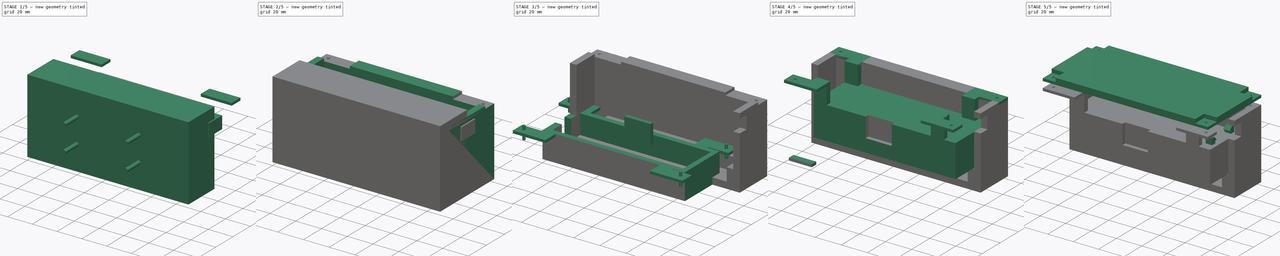
[diagram: build sequence overview — one tinted view per stage of 5, left to right]
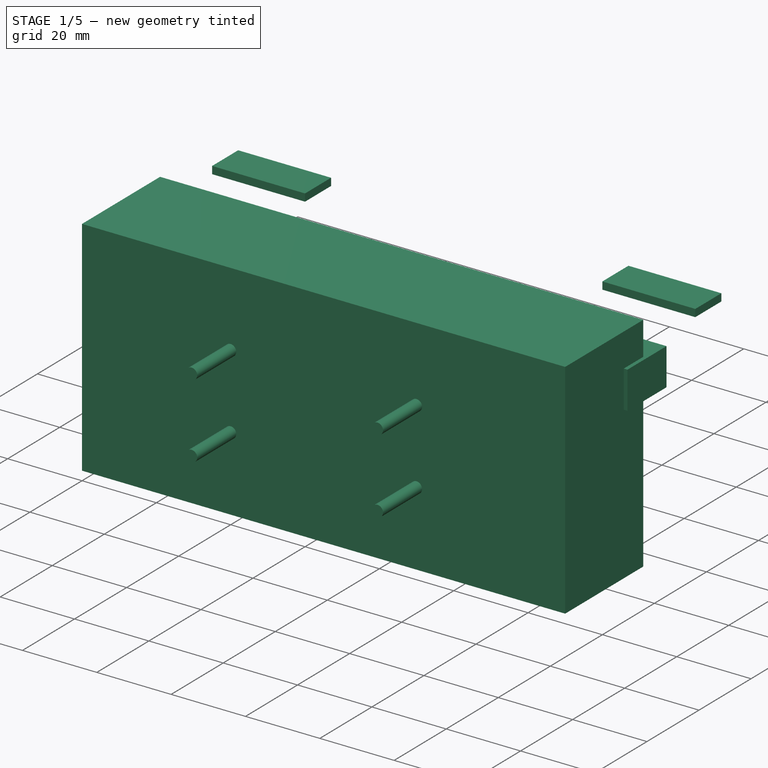
[diagram: stage 1 of 5 — iso view after this stage's code; geometry added in this stage tinted green]
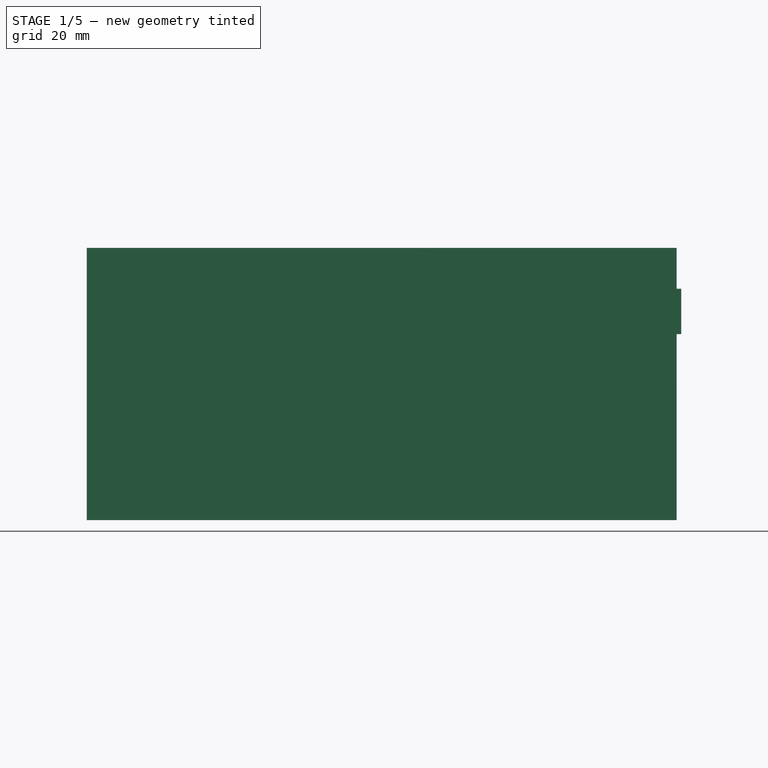
[diagram: stage 1 of 5 — front view after this stage's code; geometry added in this stage tinted green]
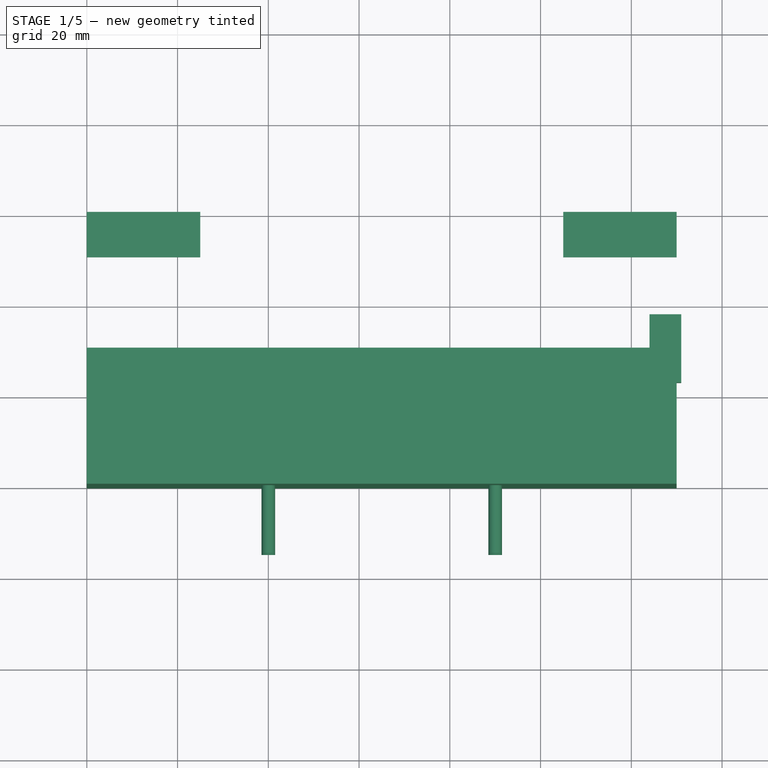
[diagram: stage 1 of 5 — top view after this stage's code; geometry added in this stage tinted green]
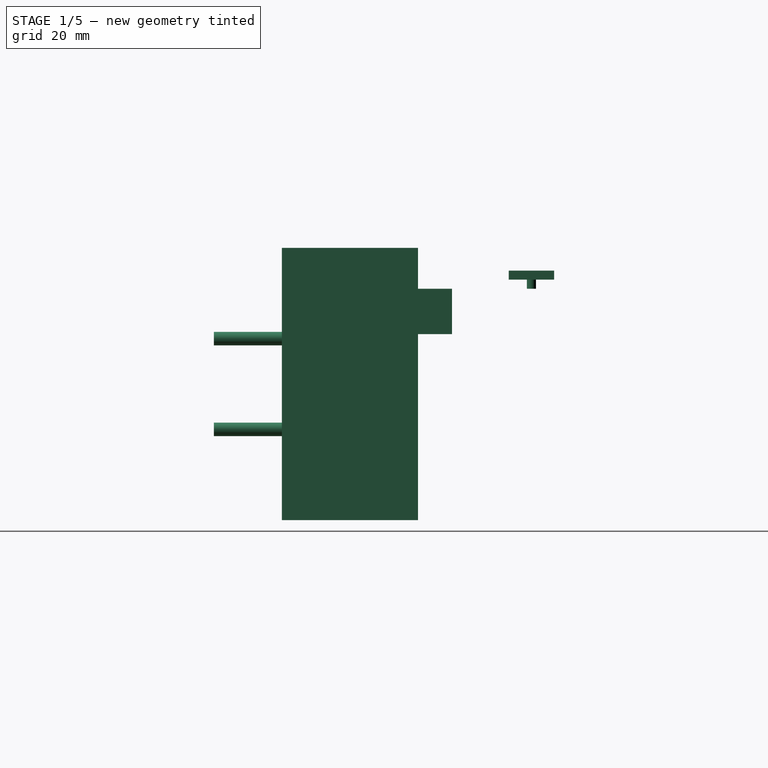
[diagram: stage 1 of 5 — right view after this stage's code; geometry added in this stage tinted green]
FCSTD DOCUMENT  (FreeCAD 0.17R13519 (Git))
Label: Alimentacion_SeccionXZ
License: All rights reserved
LicenseURL: http://en.wikipedia.org/wiki/All_rights_reserved
objects: Part::Box×17, Part::Cut×13, Part::FeaturePython×11, Part::MultiFuse×6, Part::Cylinder×4, Sketcher::SketchObject×3, PartDesign::Pad×3, App::DocumentObjectGroup×2, Part::Chamfer×1
note: 61 computed .brp shape members not serialized (recipe doc carries the construction recipe); baked Part::Feature solids carry a one-line shape summary decoded from their .brp

FEATURE [Part::Box] Box004  label="Cubo"
  AttacherType = Attacher::AttachEngine3D
  Height = 10
  Length = 10
  Width = 2
FEATURE [Part::Box] Box005  label="Cubo001"
  AttacherType = Attacher::AttachEngine3D
  Height = 10
  Length = 10
  Placement = pos=(35,0,25) rot=(0,0,1;0rad)
  Width = 10
FEATURE [Part::FeaturePython] Array001  # Draft array (typed FeaturePython)
  Angle = 360
  ArrayType = 0
  Axis = (0,0,1)
  Base = -> Box005
  Center = (0,0,0)
  Fuse = false
  IntervalAxis = (0,0,0)
  IntervalX = (50,0,0)
  IntervalY = (0,0,0)
  IntervalZ = (0,0,0)
  NumberPolar = 1
  NumberX = 2
  NumberY = 1
  NumberZ = 1
FEATURE [Part::Box] Box006  label="Cubo002"
  AttacherType = Attacher::AttachEngine3D
  Height = 2
  Length = 25
  Width = 10
FEATURE [Part::FeaturePython] Array002  # Draft array (typed FeaturePython)
  Angle = 360
  ArrayType = 0
  Axis = (0,0,1)
  Base = -> Box006
  Center = (0,0,0)
  Fuse = false
  IntervalAxis = (0,0,0)
  IntervalX = (105,0,0)
  IntervalY = (0,50,0)
  IntervalZ = (0,0,0)
  NumberPolar = 1
  NumberX = 2
  NumberY = 2
  NumberZ = 1
  Placement = pos=(0,0,53) rot=(0,0,1;0rad)
FEATURE [Part::Cylinder] Cylinder  label="Cilindro"
  Angle = 360
  AttacherType = Attacher::AttachEngine3D
  Height = 30
  Placement = pos=(0,0,0) rot=(1,0,0;1.5708rad)
  Radius = 1.5
FEATURE [Part::FeaturePython] Array003  # Draft array (typed FeaturePython)
  Angle = 360
  ArrayType = 0
  Axis = (0,0,1)
  Base = -> Cylinder
  Center = (0,0,0)
  Fuse = false
  IntervalAxis = (0,0,0)
  IntervalX = (50,0,0)
  IntervalY = (0,0,20)
  IntervalZ = (0,0,0)
  NumberPolar = 1
  NumberX = 2
  NumberY = 2
  NumberZ = 1
  Placement = pos=(40,15,20) rot=(0,0,1;0rad)
FEATURE [Part::Cylinder] Cylinder001  label="Cilindro001"
  Angle = 360
  AttacherType = Attacher::AttachEngine3D
  Height = 3
  Radius = 1
FEATURE [Part::FeaturePython] Array004  # Draft array (typed FeaturePython)
  Angle = 360
  ArrayType = 0
  Axis = (0,0,1)
  Base = -> Cylinder001
  Center = (0,0,0)
  Fuse = false
  IntervalAxis = (0,0,0)
  IntervalX = (120,0,0)
  IntervalY = (0,50,0)
  IntervalZ = (0,0,0)
  NumberPolar = 1
  NumberX = 2
  NumberY = 2
  NumberZ = 1
  Placement = pos=(5,5,51) rot=(0,0,1;0rad)
FEATURE [Part::Box] Box014  label="HuecoUSB"
  AttacherType = Attacher::AttachEngine3D
  Height = 10
  Length = 7
  Placement = pos=(124,22.5,41) rot=(0,0,1;0rad)
  Width = 15
FEATURE [Part::Box] Box016  label="Corte"
  AttacherType = Attacher::AttachEngine3D
  Height = 60
  Length = 130
  Width = 30
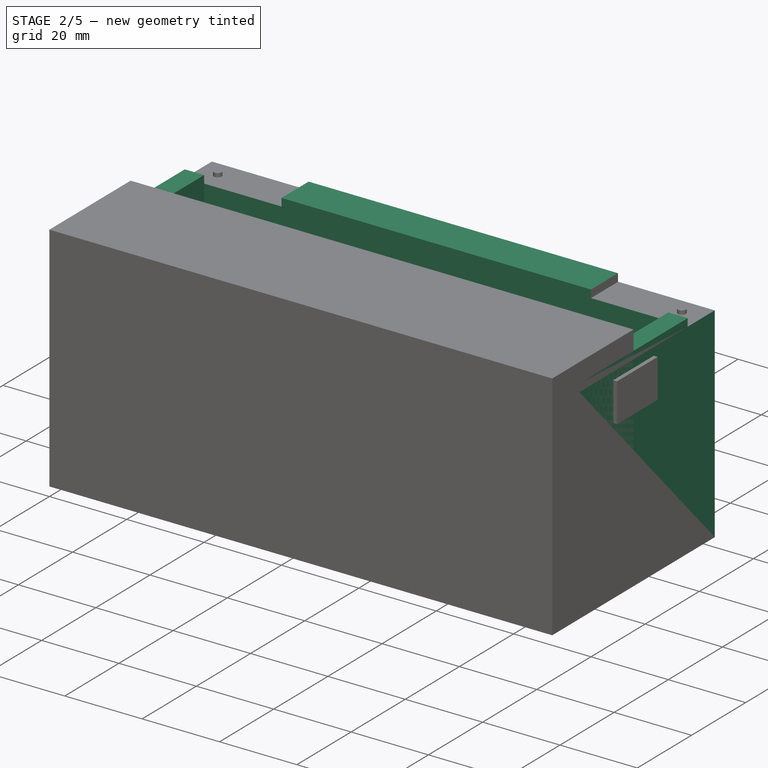
[diagram: stage 2 of 5 — iso view after this stage's code; geometry added in this stage tinted green]
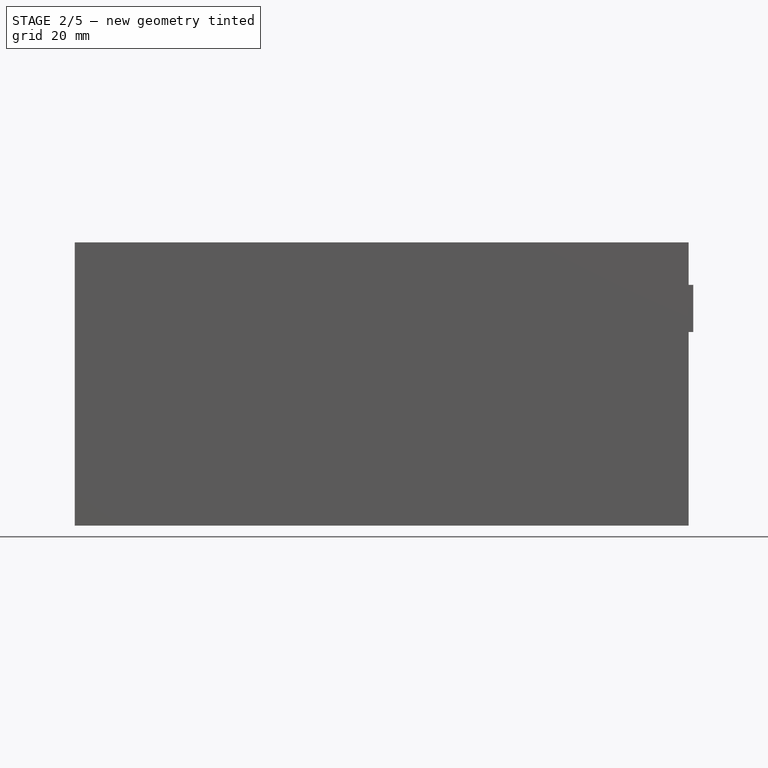
[diagram: stage 2 of 5 — front view after this stage's code; geometry added in this stage tinted green]
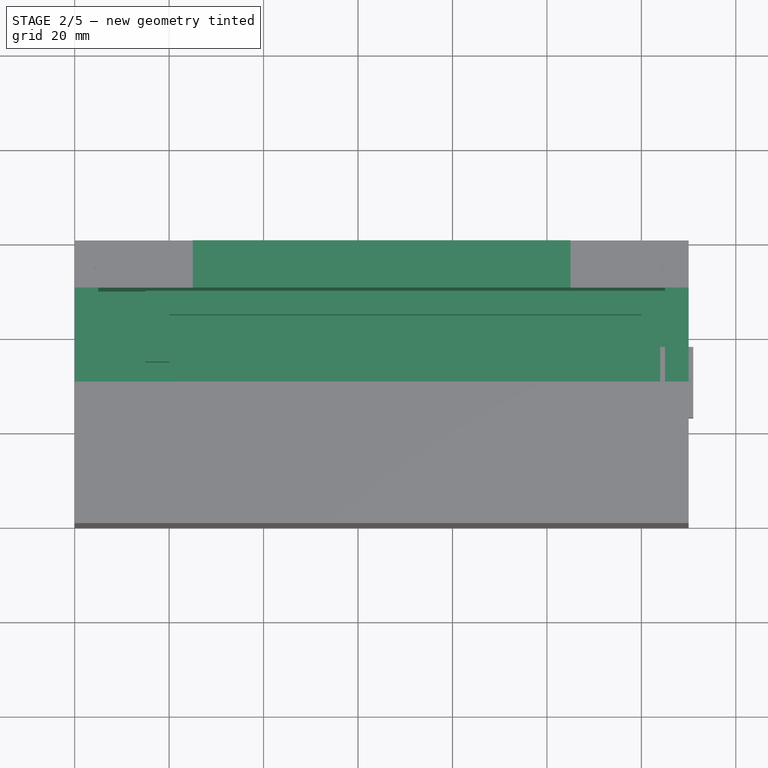
[diagram: stage 2 of 5 — top view after this stage's code; geometry added in this stage tinted green]
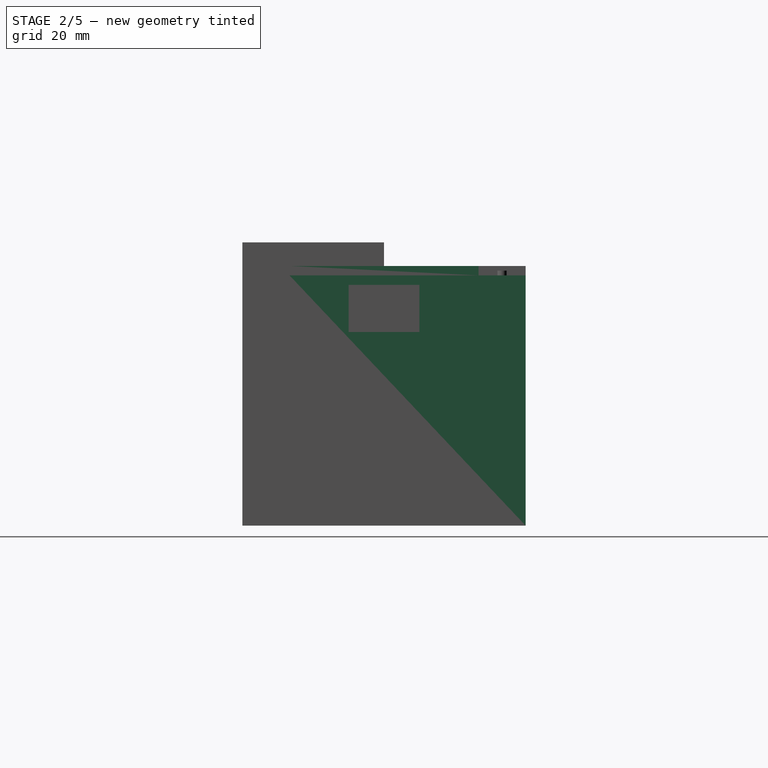
[diagram: stage 2 of 5 — right view after this stage's code; geometry added in this stage tinted green]
FEATURE [Part::Box] Box  label="Exterior"
  AttacherType = Attacher::AttachEngine3D
  Height = 55
  Length = 130
  Width = 60
FEATURE [Part::Box] Box001  label="Interior"
  AttacherType = Attacher::AttachEngine3D
  Height = 50
  Length = 120
  Placement = pos=(5,10,5) rot=(0,0,1;0rad)
  Width = 40
FEATURE [Part::Cut] Cut  label="BaseCarcasa"
  Base = -> Box
  Refine = true
  Tool = -> Box001
FEATURE [Part::Box] Box003  label="HuecoConector_1"
  AttacherType = Attacher::AttachEngine3D
  Height = 30
  Length = 60
  Width = 10
FEATURE [Part::FeaturePython] Array  # Draft array (typed FeaturePython)
  Angle = 360
  ArrayType = 0
  Axis = (0,0,1)
  Base = -> Box004
  Center = (0,0,0)
  Fuse = false
  IntervalAxis = (0,0,0)
  IntervalX = (50,0,0)
  IntervalY = (0,0,20)
  IntervalZ = (0,0,0)
  NumberPolar = 1
  NumberX = 2
  NumberY = 2
  NumberZ = 1
  Placement = pos=(0,5,0) rot=(0,0,1;0rad)
FEATURE [Part::Cut] Cut001  label="HuecoConector"
  Base = -> Box003
  Placement = pos=(35,0,15) rot=(0,0,1;0rad)
  Refine = true
  Tool = -> Array
FEATURE [Part::Cut] Cut002
  Base = -> Cut001
  Refine = true
  Tool = -> Array001
FEATURE [Part::Cut] Cut003  label="BaseConConector"
  Base = -> Cut
  Refine = true
  Tool = -> Cut002
FEATURE [Part::Cut] Cut004  label="BaseConSoporte"
  Base = -> Cut003
  Refine = true
  Tool = -> Array002
FEATURE [App::DocumentObjectGroup] Grupo  label="Carcasa_Partes"
  Group = -> [Cut004]
FEATURE [Sketcher::SketchObject] Sketch
  ExternalGeometry = -> [Cut004]
  MapMode = 5
  Placement = pos=(0,0,5) rot=(0,0,1;0rad)
  Support = -> [Cut004]
  sketch-geometry (12):
    g0: LineSegment StartX=15 StartY=35 StartZ=0 EndX=20 EndY=35 EndZ=0
    g1: LineSegment StartX=20 StartY=35 StartZ=0 EndX=20 EndY=45 EndZ=0
    g2: LineSegment StartX=20 StartY=45 StartZ=0 EndX=120 EndY=45 EndZ=0
    g3: LineSegment StartX=120 StartY=45 StartZ=0 EndX=120 EndY=15 EndZ=0
    g4: LineSegment StartX=120 StartY=15 StartZ=0 EndX=20 EndY=15 EndZ=0
    g5: LineSegment StartX=20 StartY=15 StartZ=0 EndX=20 EndY=25 EndZ=0
    g6: LineSegment StartX=20 StartY=25 StartZ=0 EndX=15 EndY=25 EndZ=0
    g7: LineSegment StartX=15 StartY=25 StartZ=0 EndX=15 EndY=10 EndZ=0
    g8: LineSegment StartX=15 StartY=10 StartZ=0 EndX=125 EndY=10 EndZ=0
    g9: LineSegment StartX=125 StartY=10 StartZ=0 EndX=125 EndY=50 EndZ=0
    g10: LineSegment StartX=125 StartY=50 StartZ=0 EndX=15 EndY=50 EndZ=0
    g11: LineSegment StartX=15 StartY=50 StartZ=0 EndX=15 EndY=35 EndZ=0
  constraints (37):
    c: Horizontal(g0)
    c: Coincident(g0,g1)
    c: Vertical(g1)
    c: Coincident(g1,g2)
    c: Horizontal(g2)
    c: Coincident(g2,g3)
    c: Vertical(g3)
    c: Coincident(g3,g4)
    c: Horizontal(g4)
    c: Coincident(g4,g5)
    c: Coincident(g5,g6)
    c: Horizontal(g6)
    c: Coincident(g6,g7)
    c: Vertical(g7)
    c: Coincident(g7,g8)
    c: Horizontal(g8)
    c: Coincident(g8,g9)
    c: Vertical(g9)
    c: Coincident(g9,g10)
    c: Horizontal(g10)
    c: Coincident(g10,g11)
    c: Coincident(g11,g0)
    c: Vertical(g11)
    c: Equal(g2,g4)
    c: Equal(g10,g8)
    c: Vertical(g5)
    c: Equal(g5,g1)
    c: Equal(g7,g11)
    c: Equal(g6,g0)
    c: DistanceX(g10,g10) = 110
    c: DistanceY(g11,g11) = 15
    c: DistanceY(g3,g3) = 30
    c: DistanceY(g9,g9) = 40
    c: DistanceX(g6,g6) = 5
    c: DistanceX(g4,g4) = 100
    c: PointOnObject(g10,g-3)
    c: Coincident(g-3,g9)
FEATURE [PartDesign::Pad] Pad  label="BaseConBateria"
  Length = 10
  Length2 = 100
  Profile = -> Sketch
  Refine = true
  Type = 0
FEATURE [Part::Cut] Cut005
  Base = -> Pad
  Refine = true
  Tool = -> Array003
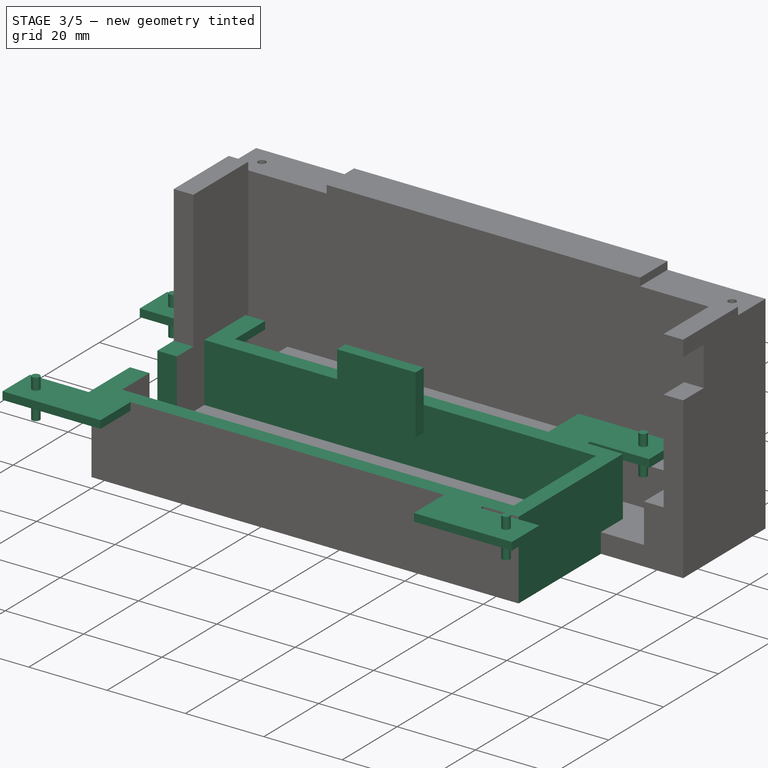
[diagram: stage 3 of 5 — iso view after this stage's code; geometry added in this stage tinted green]
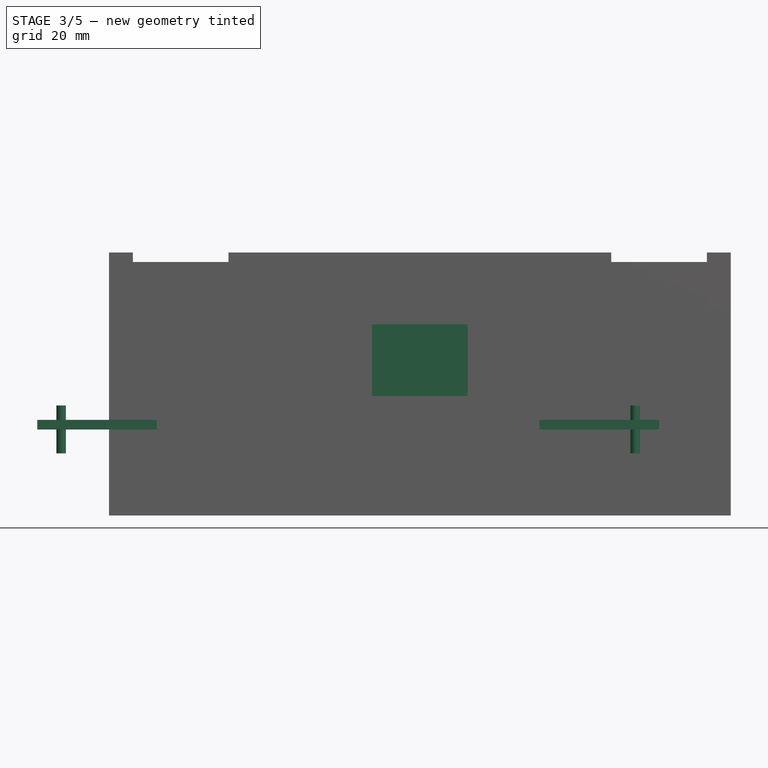
[diagram: stage 3 of 5 — front view after this stage's code; geometry added in this stage tinted green]
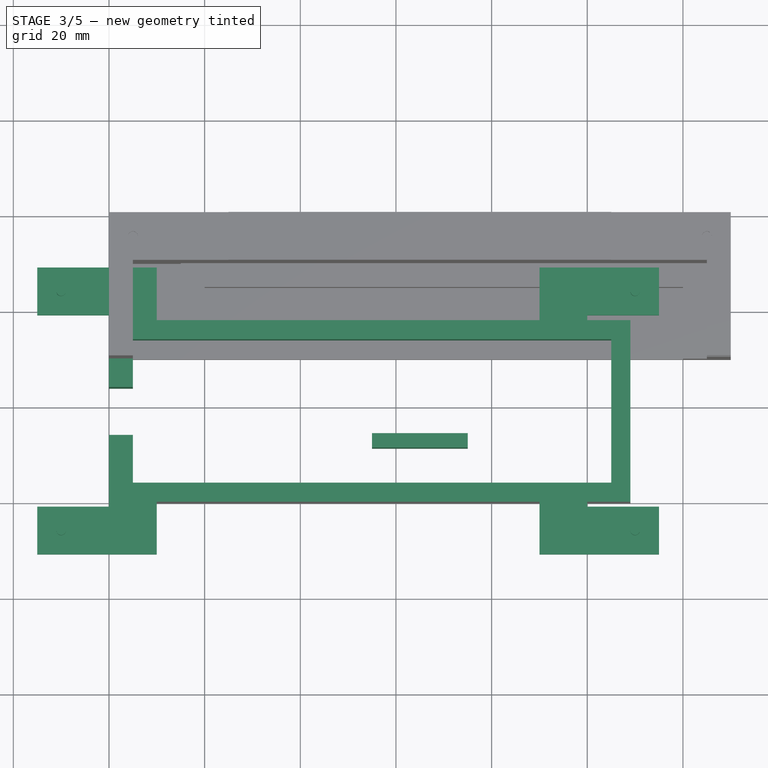
[diagram: stage 3 of 5 — top view after this stage's code; geometry added in this stage tinted green]
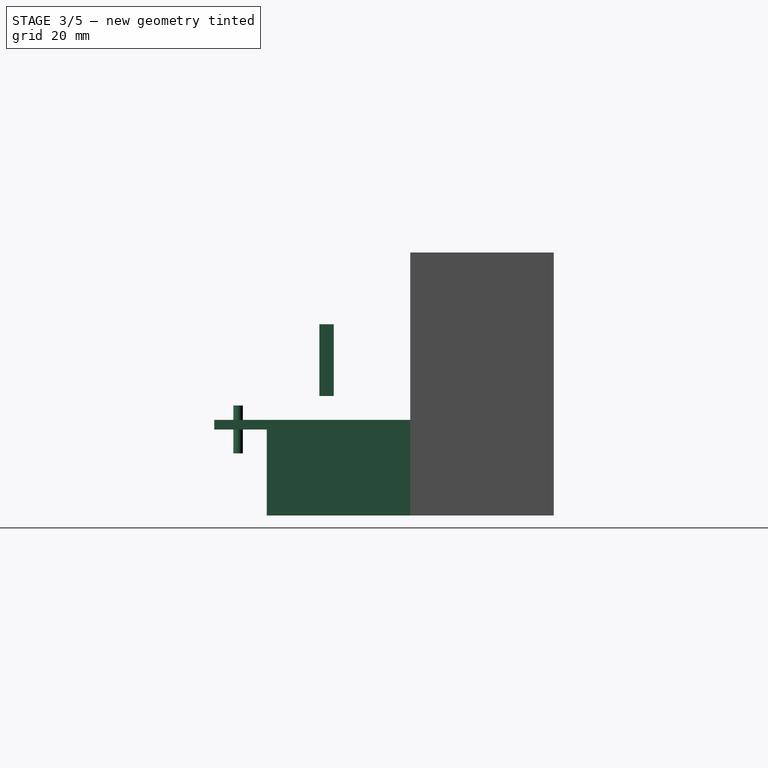
[diagram: stage 3 of 5 — right view after this stage's code; geometry added in this stage tinted green]
FEATURE [Part::Cut] Cut006  label="Carcasa_Alimentacion"
  Base = -> Cut005
  Refine = true
  Tool = -> Array004
FEATURE [Part::Box] Box010  label="Cubo005"
  AttacherType = Attacher::AttachEngine3D
  Height = 2
  Length = 10
  Placement = pos=(0,-11,18) rot=(0,0,1;0rad)
  Width = 15
FEATURE [Part::FeaturePython] Array007  # Draft array (typed FeaturePython)
  Angle = 360
  ArrayType = 0
  Axis = (0,0,1)
  Base = -> Box010
  Center = (0,0,0)
  Fuse = false
  IntervalAxis = (0,0,0)
  IntervalX = (90,0,0)
  IntervalY = (0,45,0)
  IntervalZ = (0,0,0)
  NumberPolar = 1
  NumberX = 2
  NumberY = 2
  NumberZ = 1
FEATURE [Part::Box] Box011  label="Cubo006"
  AttacherType = Attacher::AttachEngine3D
  Height = 2
  Length = 25
  Placement = pos=(-15,-11,18) rot=(0,0,1;0rad)
  Width = 10
FEATURE [Part::FeaturePython] Array008  # Draft array (typed FeaturePython)
  Angle = 360
  ArrayType = 0
  Axis = (0,0,1)
  Base = -> Box011
  Center = (0,0,0)
  Fuse = false
  IntervalAxis = (0,0,0)
  IntervalX = (105,0,0)
  IntervalY = (0,50,0)
  IntervalZ = (0,0,0)
  NumberPolar = 1
  NumberX = 2
  NumberY = 2
  NumberZ = 1
FEATURE [Part::Cylinder] Cylinder003  label="Cilindro003"
  Angle = 360
  AttacherType = Attacher::AttachEngine3D
  Height = 10
  Radius = 1
FEATURE [Part::FeaturePython] Array009  # Draft array (typed FeaturePython)
  Angle = 360
  ArrayType = 0
  Axis = (0,0,1)
  Base = -> Cylinder003
  Center = (0,0,0)
  Fuse = false
  IntervalAxis = (0,0,0)
  IntervalX = (120,0,0)
  IntervalY = (0,50,0)
  IntervalZ = (0,0,0)
  NumberPolar = 1
  NumberX = 2
  NumberY = 2
  NumberZ = 1
  Placement = pos=(-10,-6,13) rot=(0,0,1;0rad)
FEATURE [Sketcher::SketchObject] Sketch001
  MapMode = 5
  sketch-geometry (12):
    g0: LineSegment StartX=0 StartY=24 StartZ=0 EndX=5 EndY=24 EndZ=0
    g1: LineSegment StartX=5 StartY=24 StartZ=0 EndX=5 EndY=34 EndZ=0
    g2: LineSegment StartX=5 StartY=34 StartZ=0 EndX=105 EndY=34 EndZ=0
    g3: LineSegment StartX=105 StartY=34 StartZ=0 EndX=105 EndY=4 EndZ=0
    g4: LineSegment StartX=105 StartY=4 StartZ=0 EndX=5 EndY=4 EndZ=0
    g5: LineSegment StartX=5 StartY=4 StartZ=0 EndX=5 EndY=14 EndZ=0
    g6: LineSegment StartX=5 StartY=14 StartZ=0 EndX=0 EndY=14 EndZ=0
    g7: LineSegment StartX=0 StartY=14 StartZ=0 EndX=0 EndY=0 EndZ=0
    g8: LineSegment StartX=0 StartY=0 StartZ=0 EndX=109 EndY=0 EndZ=0
    g9: LineSegment StartX=109 StartY=0 StartZ=0 EndX=109 EndY=38 EndZ=0
    g10: LineSegment StartX=109 StartY=38 StartZ=0 EndX=0 EndY=38 EndZ=0
    g11: LineSegment StartX=0 StartY=38 StartZ=0 EndX=0 EndY=24 EndZ=0
  constraints (36):
    c: Coincident(g0,g1)
    c: Coincident(g1,g2)
    c: Horizontal(g2)
    c: Coincident(g2,g3)
    c: Coincident(g3,g4)
    c: Horizontal(g4)
    c: Coincident(g4,g5)
    c: Coincident(g5,g6)
    c: Coincident(g6,g7)
    c: Coincident(g7,g8)
    c: Horizontal(g8)
    c: Coincident(g8,g9)
    c: Vertical(g9)
    c: Coincident(g9,g10)
    c: Horizontal(g10)
    c: Coincident(g10,g11)
    c: Coincident(g11,g0)
    c: Vertical(g3)
    c: Vertical(g11)
    c: Vertical(g7)
    c: Vertical(g5)
    c: Horizontal(g6)
    c: Horizontal(g0)
    c: Vertical(g1)
    c: Equal(g0,g6)
    c: Equal(g2,g4)
    c: Equal(g1,g5)
    c: Equal(g11,g7)
    c: Equal(g10,g8)
    c: DistanceX(g8,g8) = 109
    c: DistanceX(g4,g4) = 100
    c: DistanceY(g11,g11) = 14
    c: DistanceX(g0,g0) = 5
    c: DistanceY(g3,g3) = 30
    c: DistanceY(g9,g9) = 38
    c: Coincident(g7,g-1)
FEATURE [PartDesign::Pad] Pad001
  Length = 20
  Length2 = 100
  Profile = -> Sketch001
  Refine = true
  Type = 0
FEATURE [Part::Cut] Cut010  label="Carcasa_Alimentacion_final"
  Base = -> Cut006
  Refine = true
  Tool = -> Box014
FEATURE [Part::Box] Box015  label="Hueco_Tornillo_Conector"
  AttacherType = Attacher::AttachEngine3D
  Height = 15
  Length = 20
  Placement = pos=(55,11,25) rot=(0,0,1;0rad)
  Width = 3
FEATURE [Part::Cut] Cut012  label="SeccionXZ"
  Base = -> Cut010
  Refine = true
  Tool = -> Box016
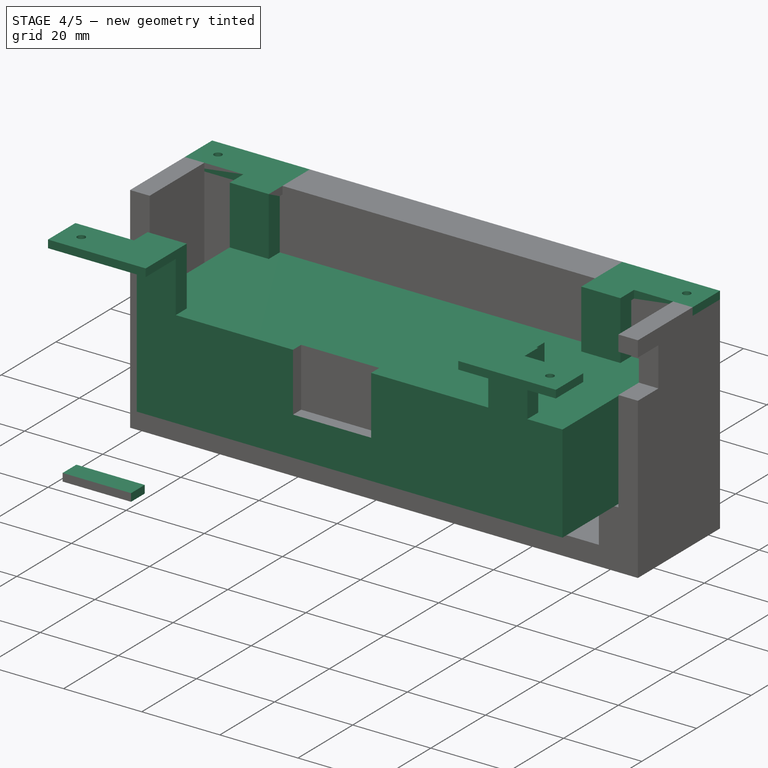
[diagram: stage 4 of 5 — iso view after this stage's code; geometry added in this stage tinted green]
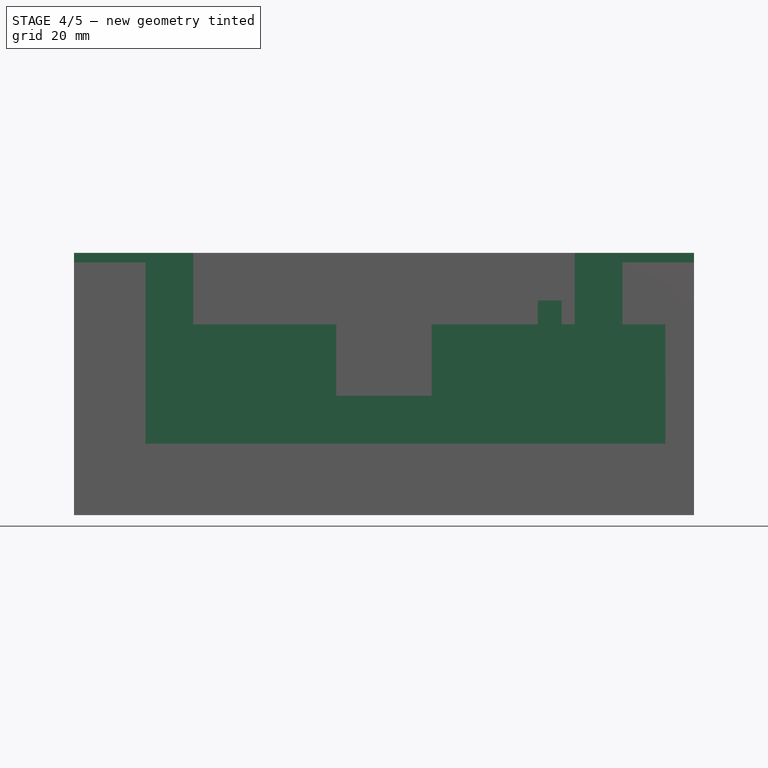
[diagram: stage 4 of 5 — front view after this stage's code; geometry added in this stage tinted green]
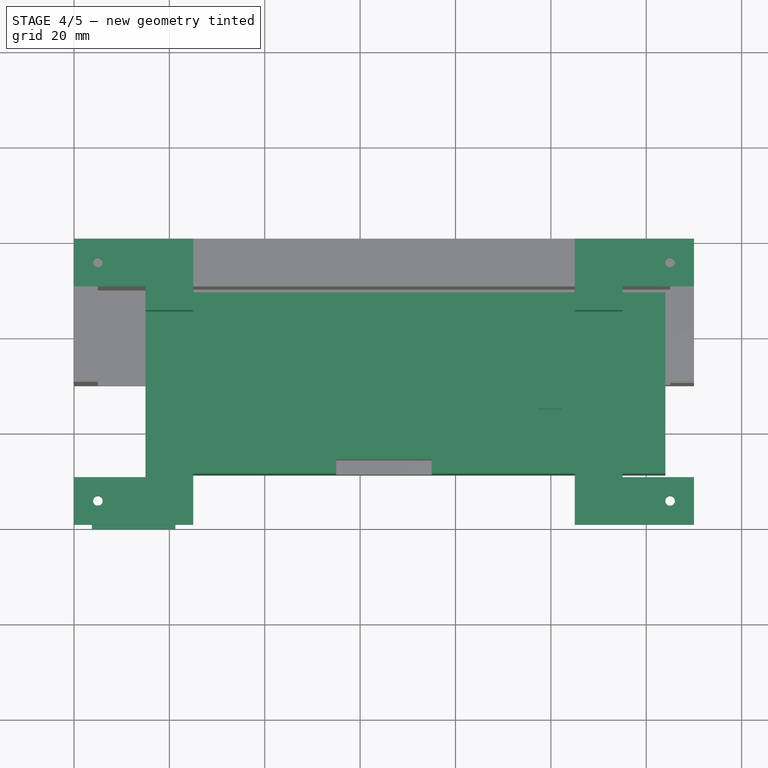
[diagram: stage 4 of 5 — top view after this stage's code; geometry added in this stage tinted green]
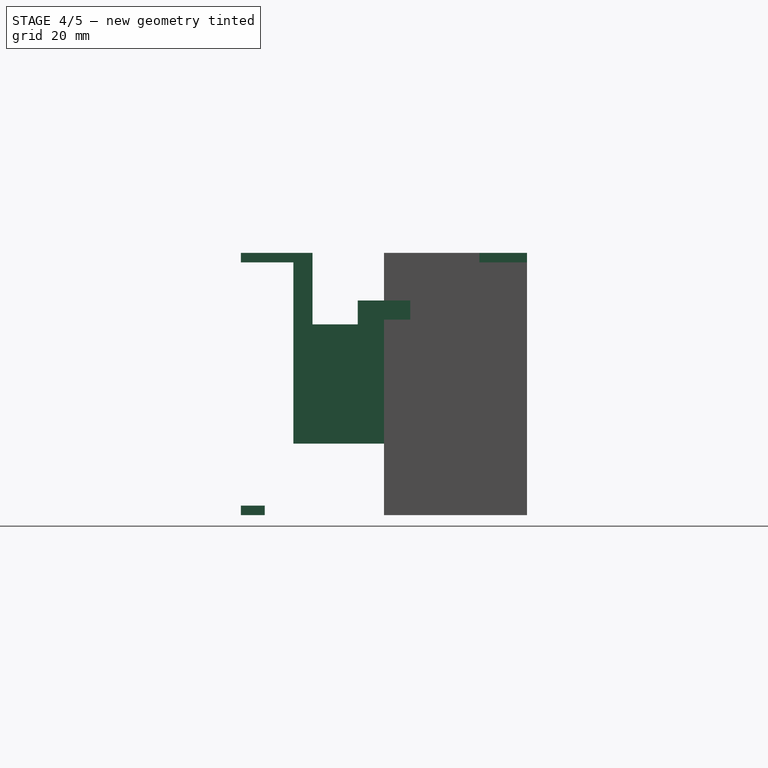
[diagram: stage 4 of 5 — right view after this stage's code; geometry added in this stage tinted green]
FEATURE [Part::Box] Box008  label="Soporte_base"
  AttacherType = Attacher::AttachEngine3D
  Height = 5
  Length = 109
  Width = 38
FEATURE [Part::Box] Box009  label="Cubo004"
  AttacherType = Attacher::AttachEngine3D
  Height = 15
  Length = 10
  Placement = pos=(0,0,5) rot=(0,0,1;0rad)
  Width = 4
FEATURE [Part::FeaturePython] Array006  # Draft array (typed FeaturePython)
  Angle = 360
  ArrayType = 0
  Axis = (0,0,1)
  Base = -> Box009
  Center = (0,0,0)
  Fuse = false
  IntervalAxis = (0,0,0)
  IntervalX = (90,0,0)
  IntervalY = (0,34,0)
  IntervalZ = (0,0,0)
  NumberPolar = 1
  NumberX = 2
  NumberY = 2
  NumberZ = 1
FEATURE [Part::MultiFuse] Fusion001
  Refine = true
  Shapes = -> [Box008,Array006]
FEATURE [Part::MultiFuse] Fusion002
  Refine = true
  Shapes = -> [Fusion001,Array007]
FEATURE [Part::MultiFuse] Fusion003
  Refine = true
  Shapes = -> [Fusion002,Array008]
FEATURE [Part::Cut] Cut008
  Base = -> Fusion003
  Placement = pos=(0,0,20) rot=(0,0,1;0rad)
  Refine = true
  Tool = -> Array009
FEATURE [Part::MultiFuse] Fusion004  label="Sop"
  Placement = pos=(15,11,15) rot=(0,0,1;0rad)
  Refine = true
  Shapes = -> [Pad001,Cut008]
FEATURE [App::DocumentObjectGroup] Grupo001  label="Soporte_Partes"
  Group = -> [Fusion004]
FEATURE [Sketcher::SketchObject] Sketch002  label="EsquemaSoporte"
  ExternalGeometry = -> [Fusion004]
  MapMode = 5
  Placement = pos=(15,11,40) rot=(0,0,1;0rad)
  Support = -> [Fusion004]
  sketch-geometry (4):
    g0: LineSegment StartX=82.25 StartY=24.5 StartZ=0 EndX=87.25 EndY=24.5 EndZ=0
    g1: LineSegment StartX=87.25 StartY=24.5 StartZ=0 EndX=87.25 EndY=13.5 EndZ=0
    g2: LineSegment StartX=87.25 StartY=13.5 StartZ=0 EndX=82.25 EndY=13.5 EndZ=0
    g3: LineSegment StartX=82.25 StartY=13.5 StartZ=0 EndX=82.25 EndY=24.5 EndZ=0
  constraints (14):
    c: Coincident(g0,g1)
    c: Coincident(g1,g2)
    c: Coincident(g2,g3)
    c: Coincident(g3,g0)
    c: Horizontal(g0)
    c: Horizontal(g2)
    c: Vertical(g1)
    c: Vertical(g3)
    c: Equal(g0,g2)
    c: Equal(g3,g1)
    c: DistanceY(g3,g3) = 11
    c: DistanceX(g0,g0) = 5
    c: DistanceY(g0,g-3) = 13.5
    c: DistanceX(g0,g-3) = 21.75
FEATURE [PartDesign::Pad] Pad002  label="Soporte_base_1"
  Length = 5
  Length2 = 100
  Placement = pos=(15,11,15) rot=(0,0,1;0rad)
  Profile = -> Sketch002
  Refine = true
  Type = 0
FEATURE [Part::Box] Box013  label="Clavijas_hueco"
  AttacherType = Attacher::AttachEngine3D
  Height = 2
  Length = 17.5
  Placement = pos=(3.75,0,0) rot=(0,0,1;0rad)
  Width = 5
FEATURE [Part::Cut] Cut011  label="Soporte_base_2"
  Base = -> Pad002
  Refine = true
  Tool = -> Box015
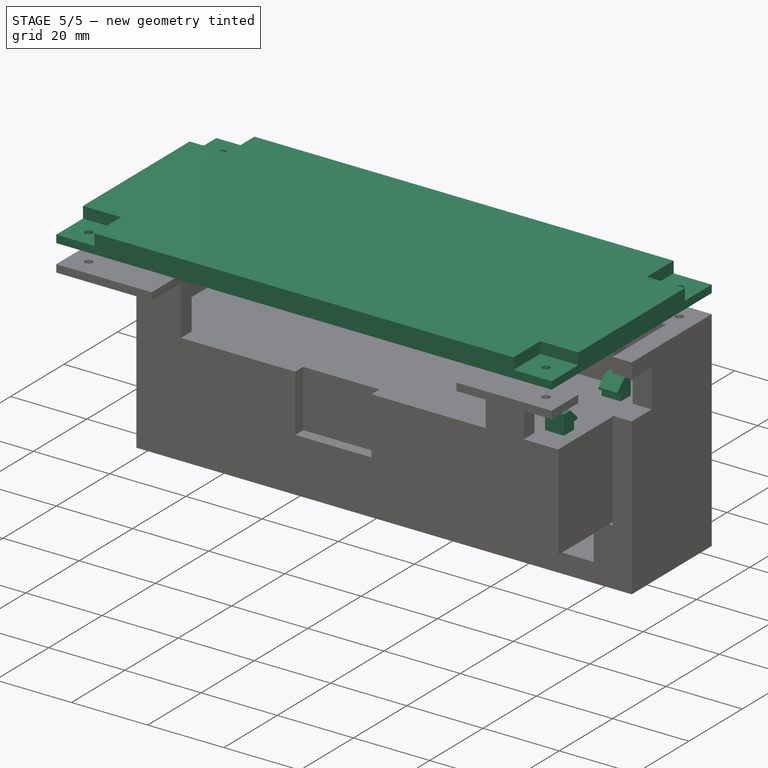
[diagram: stage 5 of 5 — iso view after this stage's code; geometry added in this stage tinted green]
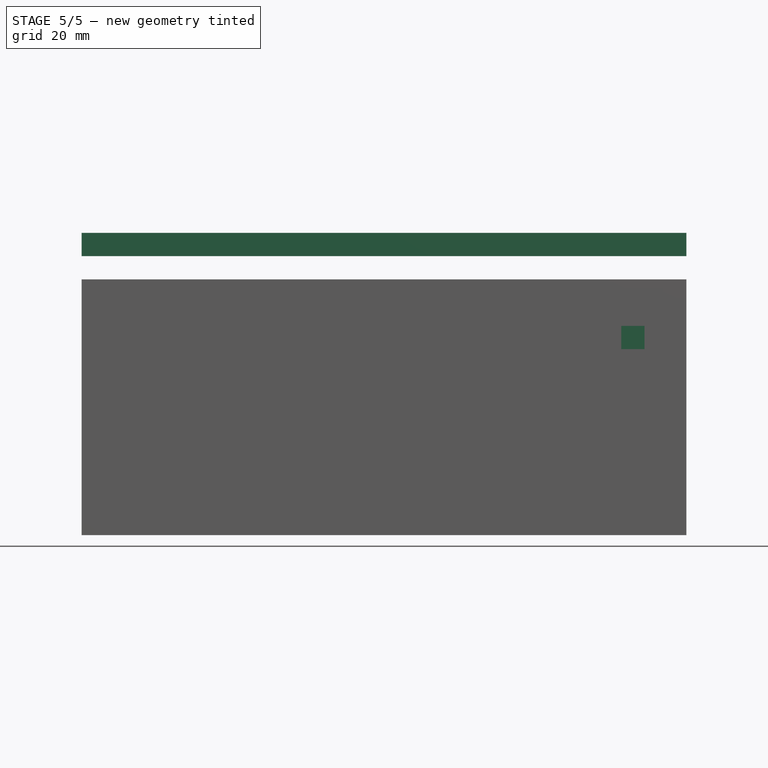
[diagram: stage 5 of 5 — front view after this stage's code; geometry added in this stage tinted green]
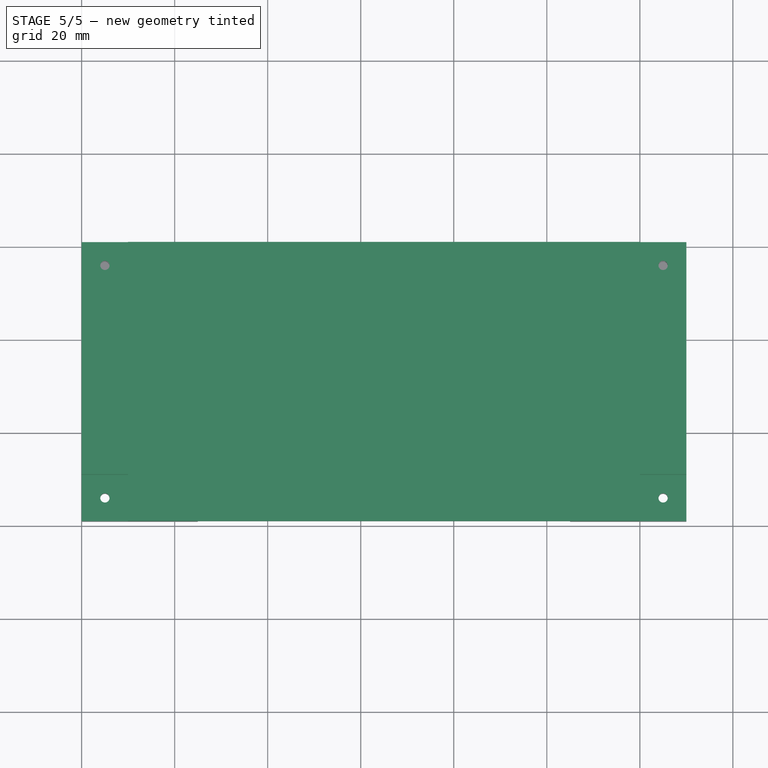
[diagram: stage 5 of 5 — top view after this stage's code; geometry added in this stage tinted green]
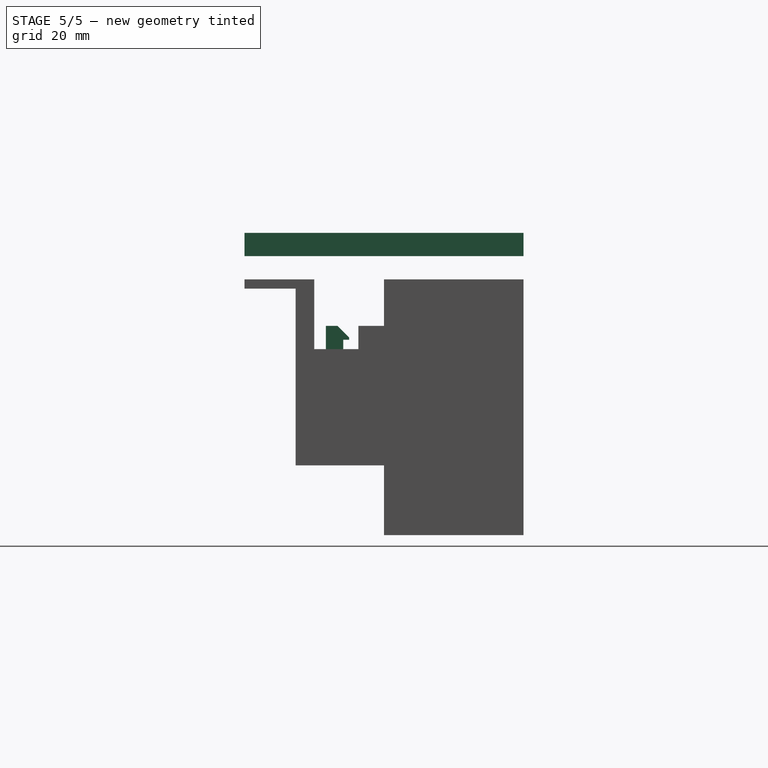
[diagram: stage 5 of 5 — right view after this stage's code; geometry added in this stage tinted green]
FEATURE [Part::Box] Box002  label="Tapa_base"
  AttacherType = Attacher::AttachEngine3D
  Height = 5
  Length = 130
  Placement = pos=(0,0,60) rot=(0,0,1;0rad)
  Width = 60
FEATURE [Part::Box] Box007  label="Cubo003"
  AttacherType = Attacher::AttachEngine3D
  Height = 10
  Length = 10
  Width = 10
FEATURE [Part::Cylinder] Cylinder002  label="Cilindro002"
  Angle = 360
  AttacherType = Attacher::AttachEngine3D
  Height = 20
  Placement = pos=(5,5,-5) rot=(0,0,1;0rad)
  Radius = 1
FEATURE [Part::MultiFuse] Fusion
  Refine = true
  Shapes = -> [Box007,Cylinder002]
FEATURE [Part::FeaturePython] Array005  label="HuecosTapa"  # Draft array (typed FeaturePython)
  Angle = 360
  ArrayType = 0
  Axis = (0,0,1)
  Base = -> Fusion
  Center = (0,0,0)
  Fuse = false
  IntervalAxis = (0,0,0)
  IntervalX = (120,0,0)
  IntervalY = (0,50,0)
  IntervalZ = (0,0,0)
  NumberPolar = 1
  NumberX = 2
  NumberY = 2
  NumberZ = 1
  Placement = pos=(0,0,62) rot=(0,0,1;0rad)
FEATURE [Part::Cut] Cut007  label="Tapa"
  Base = -> Box002
  Refine = true
  Tool = -> Array005
FEATURE [Part::Box] Box012  label="Clavija_base"
  AttacherType = Attacher::AttachEngine3D
  Height = 5
  Length = 5
  Width = 5
FEATURE [Part::FeaturePython] Array010  label="Clavijas_base_1"  # Draft array (typed FeaturePython)
  Angle = 360
  ArrayType = 0
  Axis = (0,0,1)
  Base = -> Box012
  Center = (0,0,0)
  Fuse = false
  IntervalAxis = (0,0,0)
  IntervalX = (20,0,0)
  IntervalY = (0,0,0)
  IntervalZ = (0,0,0)
  NumberPolar = 1
  NumberX = 2
  NumberY = 1
  NumberZ = 1
FEATURE [Part::Cut] Cut009  label="Clavijas_base_2"
  Base = -> Array010
  Refine = true
  Tool = -> Box013
FEATURE [Part::Chamfer] Chamfer  label="Clavijas"
  Base = -> Cut009
  Edges = 2 edges r=2.5: [Edge11,Edge20]
  Placement = pos=(121,17.5,40) rot=(0,0,1;1.5708rad)
FEATURE [Part::MultiFuse] Fusion005  label="Soporte"
  Refine = true
  Shapes = -> [Chamfer,Cut011]
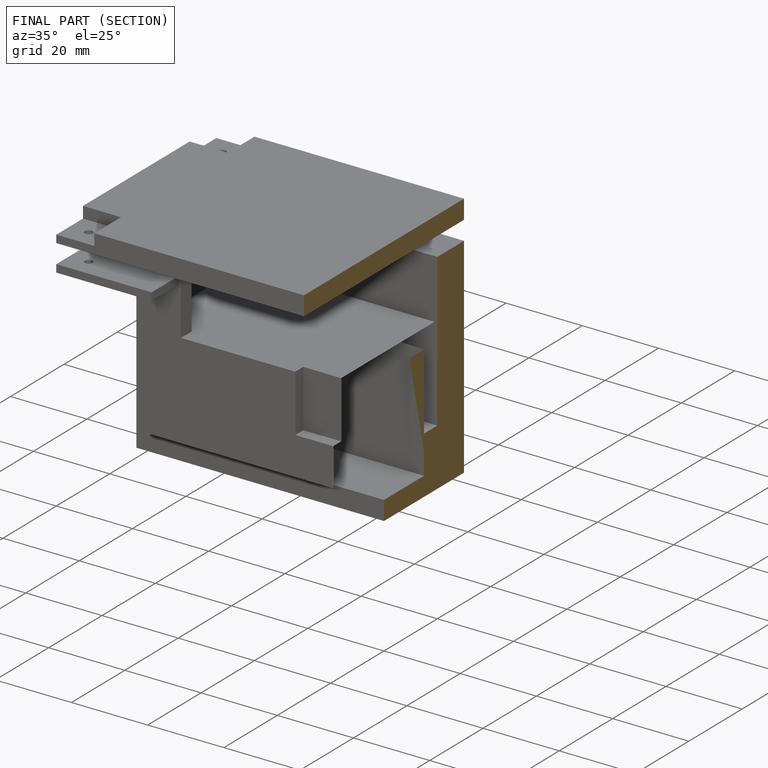
[diagram: finished part — half-section view (interior)]
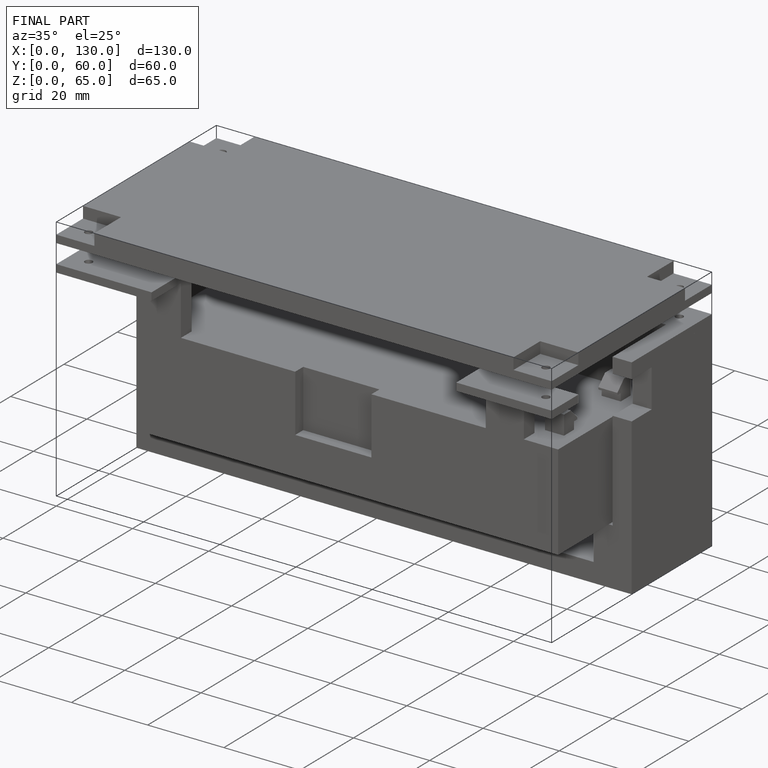
[diagram: finished part — iso view with bounding-box wireframe]
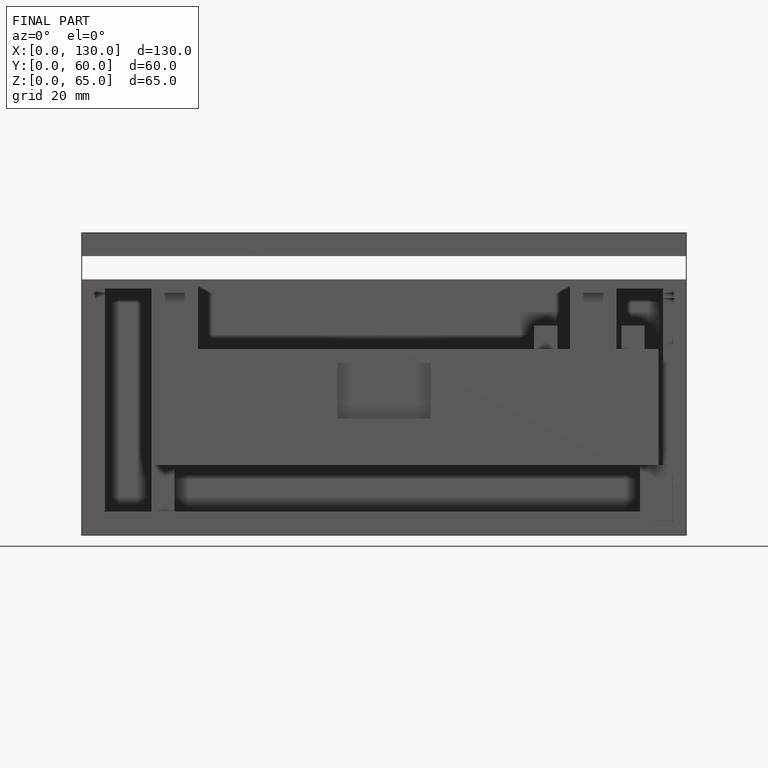
[diagram: finished part — front view with bounding-box wireframe]
